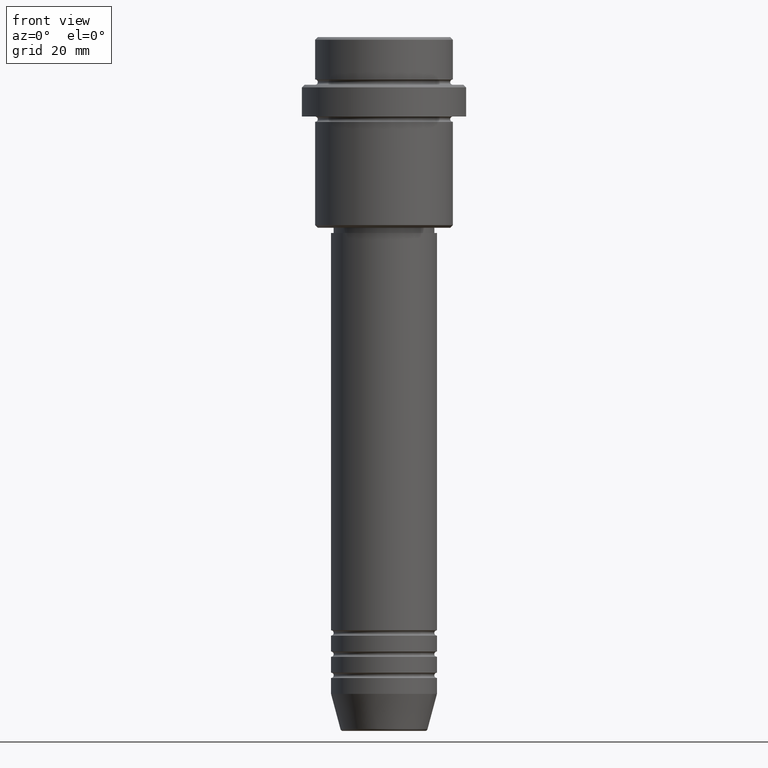
[diagram: clean part render]
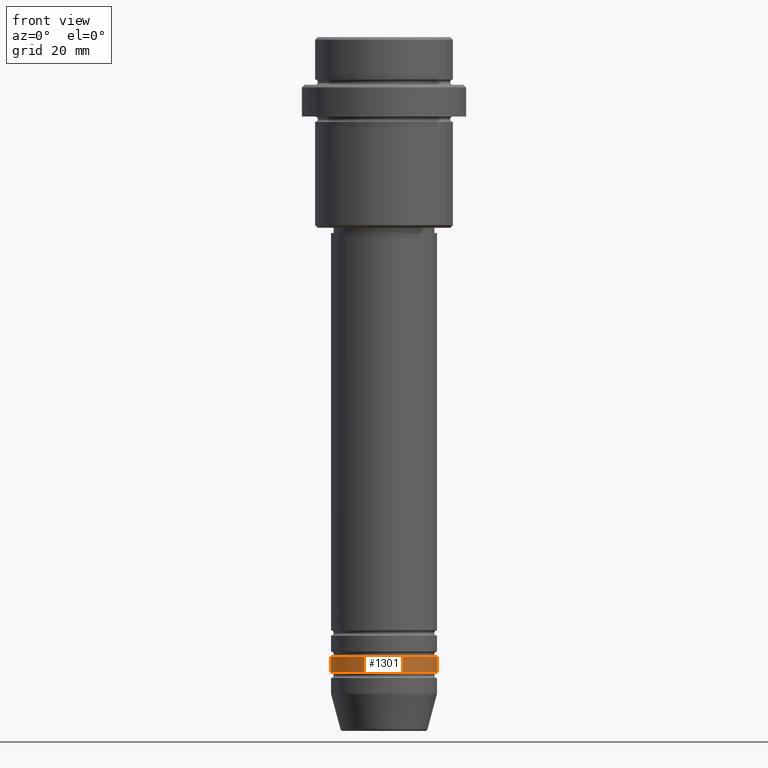
[diagram: same view with one face highlighted and labeled with its STEP entity id]
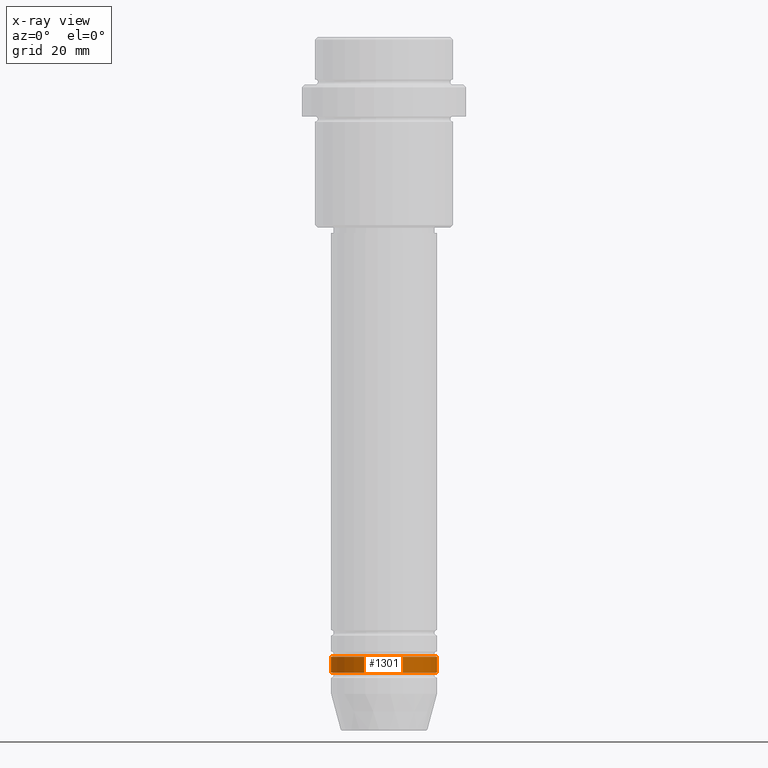
[diagram: x-ray of the same camera — body ghosted, the highlighted face saturated]
A machine part, front view. The second image highlights one B-rep face of the part: STEP entity #1301.
The next image is the same camera in x-ray: the body ghosted, the highlighted face saturated — about 0% of this face is hidden behind the body in this view.
In plain terms, the highlighted cylindrical surface (partial cylindrical patch) has radius 10 mm, axis along (-0, -0, 1).
Its self-contained STEP definition (entity closure, byte-faithful):
#7 = EDGE_LOOP ( 'NONE', ( #976, #977, #91, #754 ) ) ;
#39 = VECTOR ( 'NONE', #1383, 1000.000000000000000 ) ;
#91 = ORIENTED_EDGE ( 'NONE', *, *, #773, .T. ) ;
#138 = CYLINDRICAL_SURFACE ( 'NONE', #1219, 10.00000000000000000 ) ;
#144 = VERTEX_POINT ( 'NONE', #386 ) ;
#227 = VERTEX_POINT ( 'NONE', #607 ) ;
#234 = CARTESIAN_POINT ( 'NONE',  ( -10.00000000000000000, 1.224646799147353256E-15, -116.9999999999998863 ) ) ;
#311 = CIRCLE ( 'NONE', #1107, 10.00000000000000000 ) ;
#345 = VERTEX_POINT ( 'NONE', #424 ) ;
#386 = CARTESIAN_POINT ( 'NONE',  ( -10.00000000000000000, 1.224646799147353256E-15, -119.9999999999998579 ) ) ;
#404 = DIRECTION ( 'NONE',  ( -0.000000000000000000, -0.000000000000000000, 1.000000000000000000 ) ) ;
#405 = CARTESIAN_POINT ( 'NONE',  ( 0.000000000000000000, 0.000000000000000000, -116.9999999999998863 ) ) ;
#410 = DIRECTION ( 'NONE',  ( 1.000000000000000000, 0.000000000000000000, 0.000000000000000000 ) ) ;
#424 = CARTESIAN_POINT ( 'NONE',  ( 10.00000000000000000, 0.000000000000000000, -119.9999999999998579 ) ) ;
#563 = EDGE_CURVE ( 'NONE', #144, #1318, #959, .T. ) ;
#583 = CIRCLE ( 'NONE', #1110, 10.00000000000000000 ) ;
#607 = CARTESIAN_POINT ( 'NONE',  ( 10.00000000000000000, 0.000000000000000000, -116.9999999999998863 ) ) ;
#641 = FACE_OUTER_BOUND ( 'NONE', #7, .T. ) ;
#650 = VECTOR ( 'NONE', #949, 1000.000000000000000 ) ;
#724 = CARTESIAN_POINT ( 'NONE',  ( 0.000000000000000000, 0.000000000000000000, -119.9999999999998579 ) ) ;
#726 = CARTESIAN_POINT ( 'NONE',  ( 10.00000000000000000, 0.000000000000000000, 0.000000000000000000 ) ) ;
#754 = ORIENTED_EDGE ( 'NONE', *, *, #1005, .F. ) ;
#773 = EDGE_CURVE ( 'NONE', #345, #227, #941, .T. ) ;
#778 = CARTESIAN_POINT ( 'NONE',  ( 0.000000000000000000, 0.000000000000000000, 0.000000000000000000 ) ) ;
#935 = DIRECTION ( 'NONE',  ( 1.000000000000000000, 0.000000000000000000, 0.000000000000000000 ) ) ;
#941 = LINE ( 'NONE', #726, #650 ) ;
#949 = DIRECTION ( 'NONE',  ( -0.000000000000000000, -0.000000000000000000, 1.000000000000000000 ) ) ;
#959 = LINE ( 'NONE', #1373, #39 ) ;
#976 = ORIENTED_EDGE ( 'NONE', *, *, #563, .F. ) ;
#977 = ORIENTED_EDGE ( 'NONE', *, *, #1120, .T. ) ;
#1005 = EDGE_CURVE ( 'NONE', #1318, #227, #311, .T. ) ;
#1107 = AXIS2_PLACEMENT_3D ( 'NONE', #405, #1166, #935 ) ;
#1109 = DIRECTION ( 'NONE',  ( 1.000000000000000000, 0.000000000000000000, 0.000000000000000000 ) ) ;
#1110 = AXIS2_PLACEMENT_3D ( 'NONE', #724, #404, #410 ) ;
#1120 = EDGE_CURVE ( 'NONE', #144, #345, #583, .T. ) ;
#1166 = DIRECTION ( 'NONE',  ( -0.000000000000000000, -0.000000000000000000, 1.000000000000000000 ) ) ;
#1218 = DIRECTION ( 'NONE',  ( -0.000000000000000000, -0.000000000000000000, 1.000000000000000000 ) ) ;
#1219 = AXIS2_PLACEMENT_3D ( 'NONE', #778, #1218, #1109 ) ;
#1301 = ADVANCED_FACE ( 'NONE', ( #641 ), #138, .T. ) ;
#1318 = VERTEX_POINT ( 'NONE', #234 ) ;
#1373 = CARTESIAN_POINT ( 'NONE',  ( -10.00000000000000000, 1.224646799147353256E-15, 0.000000000000000000 ) ) ;
#1383 = DIRECTION ( 'NONE',  ( -0.000000000000000000, -0.000000000000000000, 1.000000000000000000 ) ) ;